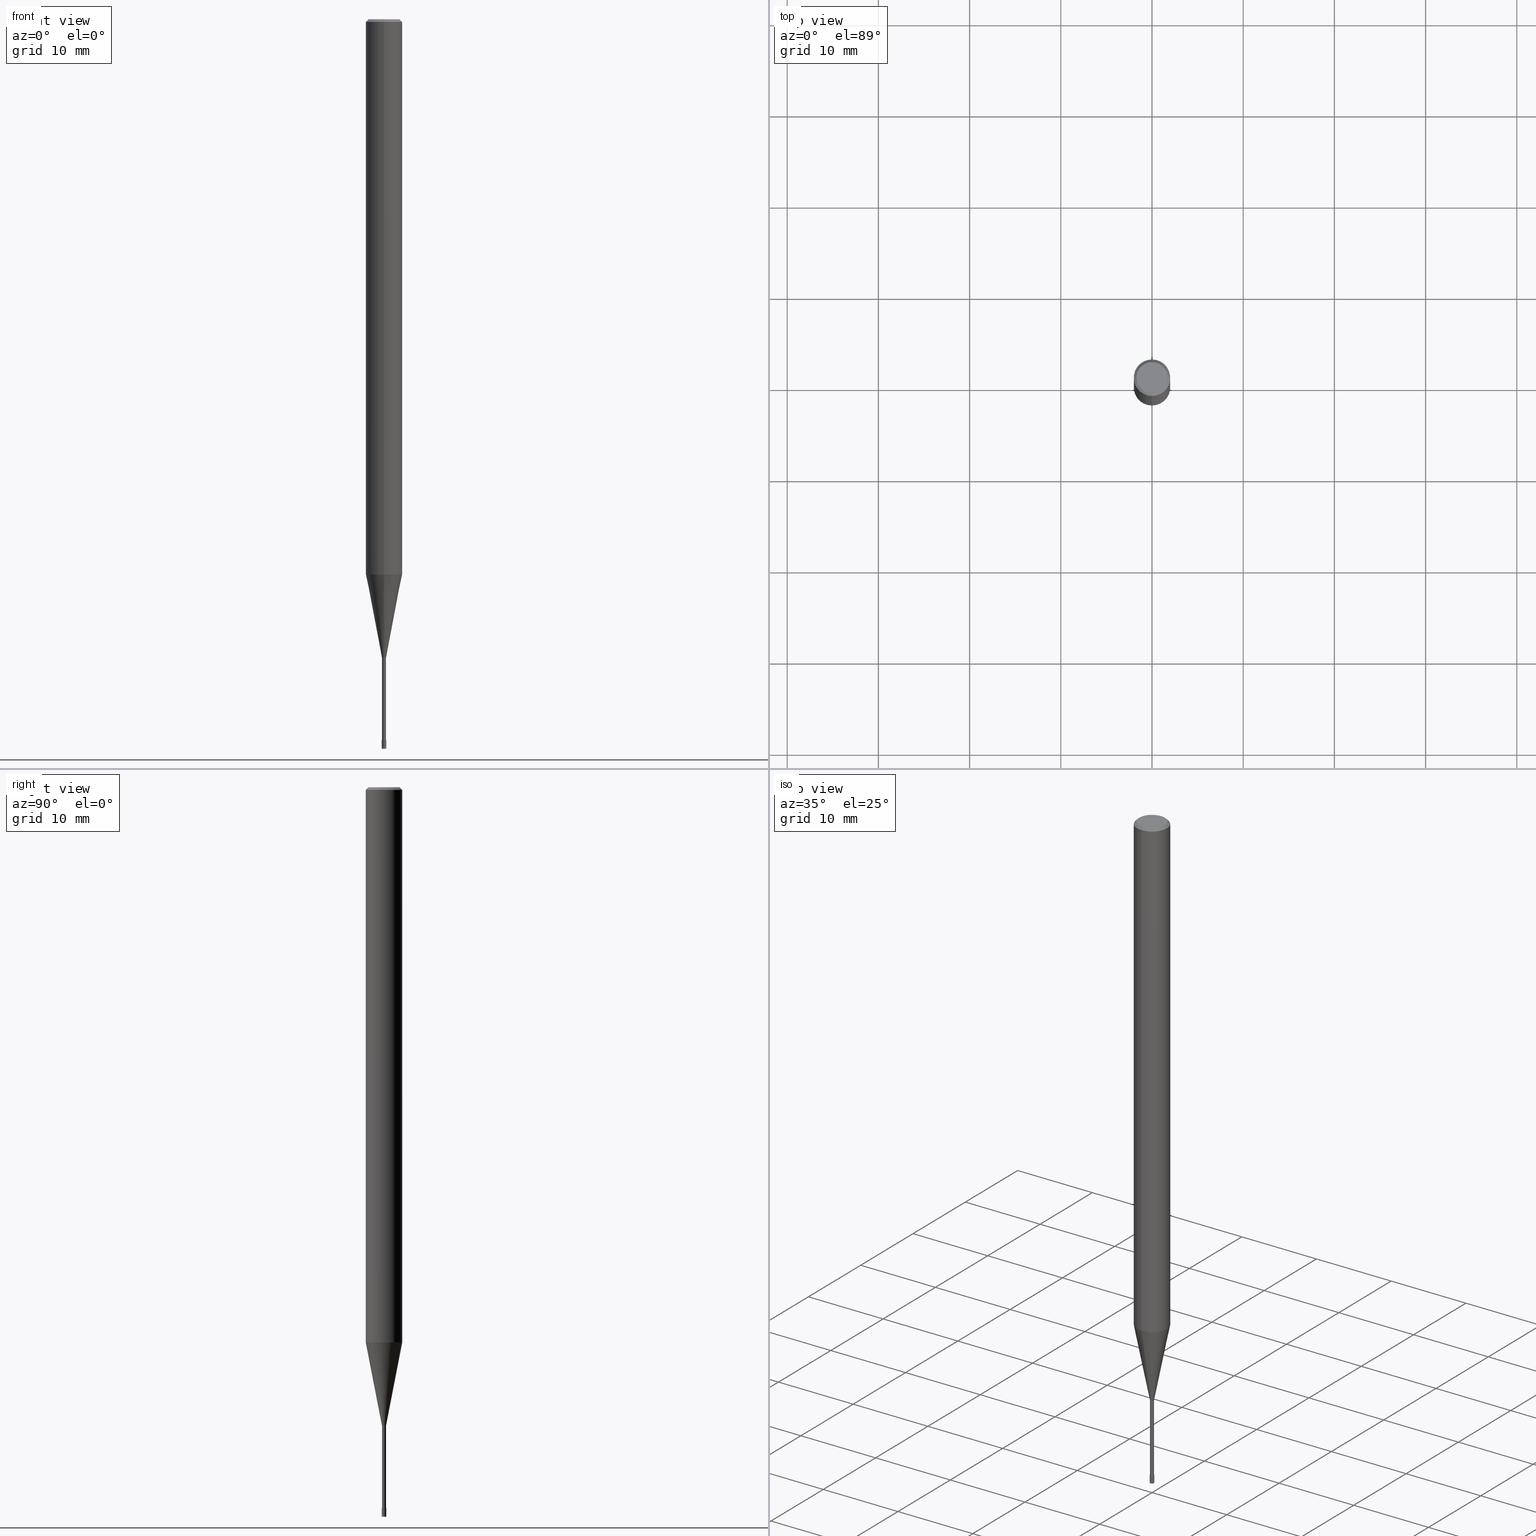
[diagram: canonical four-view strip — front | top / right | iso, engineering-drawing reading convention]
A machine part, canonical four-view strip (front | top / right | iso — engineering-drawing reading convention). The complete STEP part file that produces these views, byte-faithful:
ISO-10303-21;
HEADER;
FILE_DESCRIPTION(('no description'),'unknown implementation level');
FILE_NAME('CPRL2005-10-Huellk.stp','  ',('CIMSOURCE GmbH'),('CADClick - KiM GmbH - www.kimweb.de'),'unknown preprocess','ACIS','unknown authorization');
FILE_SCHEMA(('automotive_design'));
ENDSEC;
DATA;
#1=MECHANICAL_DESIGN_GEOMETRIC_PRESENTATION_REPRESENTATION(' ',(#14,#15,#16,#17,#18,#19,#20,#21,#22,#23,#24,#25,#26,#27,#28,#29,#30,#31,#32,#33,#34,#35,#36,#37,#38,#39,#40,#41,#42,#43,#44,#45,#46,#47,#48,#49,#50,#51,#52,#53,#54,#55,#56,#57,#58,#59,#60,#61,#62,#63,#64,#65,#66,#67,#68,#69,#70,#71,#72),#10);
#2=PRODUCT_DEFINITION_CONTEXT('',#73,'design');
#3=APPLICATION_PROTOCOL_DEFINITION('INTERNATIONAL STANDARD','automotive_design',1994,#73);
#4=PRODUCT_CATEGORY_RELATIONSHIP('NONE','NONE',#74,#75);
#5=SHAPE_DEFINITION_REPRESENTATION(#76,#77);
#6=PRODUCT_DEFINITION_CONTEXT('',#78,'design');
#7=APPLICATION_PROTOCOL_DEFINITION('INTERNATIONAL STANDARD','automotive_design',1994,#78);
#8=PRODUCT_CATEGORY_RELATIONSHIP('NONE','NONE',#79,#80);
#9=SHAPE_DEFINITION_REPRESENTATION(#81,#82);
#10= (GEOMETRIC_REPRESENTATION_CONTEXT(3)GLOBAL_UNCERTAINTY_ASSIGNED_CONTEXT((#85))GLOBAL_UNIT_ASSIGNED_CONTEXT((#87,#88,#89))REPRESENTATION_CONTEXT('NONE','WORKSPACE'));
#14=STYLED_ITEM('',(#91),#92);
#15=STYLED_ITEM('',(#93),#94);
#16=STYLED_ITEM('',(#95),#96);
#17=STYLED_ITEM('',(#97),#98);
#18=STYLED_ITEM('',(#99),#100);
#19=STYLED_ITEM('',(#101),#102);
#20=STYLED_ITEM('',(#103),#104);
#21=STYLED_ITEM('',(#105),#106);
#22=STYLED_ITEM('',(#107),#108);
#23=STYLED_ITEM('',(#109),#110);
#24=STYLED_ITEM('',(#111),#112);
#25=STYLED_ITEM('',(#113),#114);
#26=STYLED_ITEM('',(#115),#116);
#27=STYLED_ITEM('',(#117),#118);
#28=STYLED_ITEM('',(#119),#120);
#29=STYLED_ITEM('',(#121),#122);
#30=STYLED_ITEM('',(#123),#124);
#31=STYLED_ITEM('',(#125),#126);
#32=STYLED_ITEM('',(#127),#128);
#33=STYLED_ITEM('',(#129),#130);
#34=STYLED_ITEM('',(#131),#132);
#35=STYLED_ITEM('',(#133),#134);
#36=STYLED_ITEM('',(#135),#136);
#37=STYLED_ITEM('',(#137),#138);
#38=STYLED_ITEM('',(#139),#140);
#39=STYLED_ITEM('',(#141),#142);
#40=STYLED_ITEM('',(#143),#144);
#41=STYLED_ITEM('',(#145),#146);
#42=STYLED_ITEM('',(#147),#148);
#43=STYLED_ITEM('',(#149),#150);
#44=STYLED_ITEM('',(#151),#152);
#45=STYLED_ITEM('',(#153),#154);
#46=STYLED_ITEM('',(#155),#156);
#47=STYLED_ITEM('',(#157),#158);
#48=STYLED_ITEM('',(#159),#160);
#49=STYLED_ITEM('',(#161),#162);
#50=STYLED_ITEM('',(#163),#164);
#51=STYLED_ITEM('',(#165),#166);
#52=STYLED_ITEM('',(#167),#168);
#53=STYLED_ITEM('',(#169),#170);
#54=STYLED_ITEM('',(#171),#172);
#55=STYLED_ITEM('',(#173),#174);
#56=STYLED_ITEM('',(#175),#176);
#57=STYLED_ITEM('',(#177),#178);
#58=STYLED_ITEM('',(#179),#180);
#59=STYLED_ITEM('',(#181),#182);
#60=STYLED_ITEM('',(#183),#184);
#61=STYLED_ITEM('',(#185),#186);
#62=STYLED_ITEM('',(#187),#188);
#63=STYLED_ITEM('',(#189),#190);
#64=STYLED_ITEM('',(#191),#192);
#65=STYLED_ITEM('',(#193),#194);
#66=STYLED_ITEM('',(#195),#196);
#67=STYLED_ITEM('',(#197),#198);
#68=STYLED_ITEM('',(#199),#200);
#69=STYLED_ITEM('',(#201),#202);
#70=STYLED_ITEM('',(#203),#204);
#71=STYLED_ITEM('',(#205),#206);
#72=STYLED_ITEM('',(#207),#208);
#73=APPLICATION_CONTEXT(' ');
#74=PRODUCT_CATEGORY('part','NONE');
#75=PRODUCT_RELATED_PRODUCT_CATEGORY('detail',' ',(#209));
#76=PRODUCT_DEFINITION_SHAPE('NONE','NONE',#210);
#77=ADVANCED_BREP_SHAPE_REPRESENTATION('1',(#104,#211),#10);
#78=APPLICATION_CONTEXT(' ');
#79=PRODUCT_CATEGORY('part','NONE');
#80=PRODUCT_RELATED_PRODUCT_CATEGORY('detail',' ',(#212));
#81=PRODUCT_DEFINITION_SHAPE('NONE','NONE',#213);
#82=ADVANCED_BREP_SHAPE_REPRESENTATION('2',(#156,#214),#10);
#85=UNCERTAINTY_MEASURE_WITH_UNIT(LENGTH_MEASURE(1.0E-006),#87,'','');
#87= (CONVERSION_BASED_UNIT('MILLIMETRE',#217)LENGTH_UNIT()NAMED_UNIT(#220));
#88= (NAMED_UNIT(#222)PLANE_ANGLE_UNIT()SI_UNIT($,.RADIAN.));
#89= (NAMED_UNIT(#222)SOLID_ANGLE_UNIT()SI_UNIT($,.STERADIAN.));
#91=PRESENTATION_STYLE_ASSIGNMENT((#228));
#92=EDGE_CURVE('',#98,#190,#229,.T.);
#93=PRESENTATION_STYLE_ASSIGNMENT((#230));
#94=EDGE_CURVE('',#182,#180,#231,.T.);
#95=PRESENTATION_STYLE_ASSIGNMENT((#232));
#96=ADVANCED_FACE('',(#233),#234,.T.);
#97=PRESENTATION_STYLE_ASSIGNMENT((#235));
#98=VERTEX_POINT('',#236);
#99=PRESENTATION_STYLE_ASSIGNMENT((#237));
#100=ADVANCED_FACE('',(#238),#239,.T.);
#101=PRESENTATION_STYLE_ASSIGNMENT((#240));
#102=ADVANCED_FACE('',(#241),#242,.T.);
#103=PRESENTATION_STYLE_ASSIGNMENT((#243));
#104=MANIFOLD_SOLID_BREP('1',#244);
#105=PRESENTATION_STYLE_ASSIGNMENT((#245));
#106=EDGE_CURVE('',#168,#184,#246,.T.);
#107=PRESENTATION_STYLE_ASSIGNMENT((#247));
#108=VERTEX_POINT('',#248);
#109=PRESENTATION_STYLE_ASSIGNMENT((#249));
#110=ADVANCED_FACE('',(#250),#251,.T.);
#111=PRESENTATION_STYLE_ASSIGNMENT((#252));
#112=ADVANCED_FACE('',(#253),#254,.T.);
#113=PRESENTATION_STYLE_ASSIGNMENT((#255));
#114=EDGE_CURVE('',#198,#108,#256,.T.);
#115=PRESENTATION_STYLE_ASSIGNMENT((#257));
#116=EDGE_CURVE('',#190,#168,#258,.T.);
#117=PRESENTATION_STYLE_ASSIGNMENT((#259));
#118=ADVANCED_FACE('',(#260),#261,.T.);
#119=PRESENTATION_STYLE_ASSIGNMENT((#262));
#120=ADVANCED_FACE('',(#263),#264,.T.);
#121=PRESENTATION_STYLE_ASSIGNMENT((#265));
#122=VERTEX_POINT('',#266);
#123=PRESENTATION_STYLE_ASSIGNMENT((#267));
#124=EDGE_CURVE('',#182,#190,#268,.T.);
#125=PRESENTATION_STYLE_ASSIGNMENT((#269));
#126=VERTEX_POINT('',#270);
#127=PRESENTATION_STYLE_ASSIGNMENT((#271));
#128=ADVANCED_FACE('',(#272,#273),#274,.T.);
#129=PRESENTATION_STYLE_ASSIGNMENT((#275));
#130=EDGE_CURVE('',#122,#192,#276,.T.);
#131=PRESENTATION_STYLE_ASSIGNMENT((#277));
#132=EDGE_CURVE('',#206,#208,#278,.T.);
#133=PRESENTATION_STYLE_ASSIGNMENT((#279));
#134=EDGE_CURVE('',#126,#198,#280,.T.);
#135=PRESENTATION_STYLE_ASSIGNMENT((#281));
#136=EDGE_CURVE('',#170,#206,#282,.T.);
#137=PRESENTATION_STYLE_ASSIGNMENT((#283));
#138=EDGE_CURVE('',#192,#170,#284,.T.);
#139=PRESENTATION_STYLE_ASSIGNMENT((#285));
#140=EDGE_CURVE('',#170,#142,#286,.T.);
#141=PRESENTATION_STYLE_ASSIGNMENT((#287));
#142=VERTEX_POINT('',#288);
#143=PRESENTATION_STYLE_ASSIGNMENT((#289));
#144=VERTEX_POINT('',#290);
#145=PRESENTATION_STYLE_ASSIGNMENT((#291));
#146=EDGE_CURVE('',#208,#142,#292,.T.);
#147=PRESENTATION_STYLE_ASSIGNMENT((#293));
#148=EDGE_CURVE('',#142,#170,#294,.T.);
#149=PRESENTATION_STYLE_ASSIGNMENT((#295));
#150=EDGE_CURVE('',#108,#144,#296,.T.);
#151=PRESENTATION_STYLE_ASSIGNMENT((#297));
#152=EDGE_CURVE('',#190,#182,#298,.T.);
#153=PRESENTATION_STYLE_ASSIGNMENT((#299));
#154=EDGE_CURVE('',#198,#126,#300,.T.);
#155=PRESENTATION_STYLE_ASSIGNMENT((#301));
#156=MANIFOLD_SOLID_BREP('2',#302);
#157=PRESENTATION_STYLE_ASSIGNMENT((#303));
#158=ADVANCED_FACE('',(#304),#305,.T.);
#159=PRESENTATION_STYLE_ASSIGNMENT((#306));
#160=ADVANCED_FACE('',(#307),#308,.T.);
#161=PRESENTATION_STYLE_ASSIGNMENT((#309));
#162=ADVANCED_FACE('',(#310),#311,.T.);
#163=PRESENTATION_STYLE_ASSIGNMENT((#312));
#164=ADVANCED_FACE('',(#313),#314,.T.);
#165=PRESENTATION_STYLE_ASSIGNMENT((#315));
#166=EDGE_CURVE('',#142,#122,#316,.T.);
#167=PRESENTATION_STYLE_ASSIGNMENT((#317));
#168=VERTEX_POINT('',#318);
#169=PRESENTATION_STYLE_ASSIGNMENT((#319));
#170=VERTEX_POINT('',#320);
#171=PRESENTATION_STYLE_ASSIGNMENT((#321));
#172=EDGE_CURVE('',#144,#126,#322,.T.);
#173=PRESENTATION_STYLE_ASSIGNMENT((#323));
#174=EDGE_CURVE('',#192,#122,#324,.T.);
#175=PRESENTATION_STYLE_ASSIGNMENT((#325));
#176=EDGE_CURVE('',#208,#206,#326,.T.);
#177=PRESENTATION_STYLE_ASSIGNMENT((#327));
#178=EDGE_CURVE('',#180,#98,#328,.T.);
#179=PRESENTATION_STYLE_ASSIGNMENT((#329));
#180=VERTEX_POINT('',#330);
#181=PRESENTATION_STYLE_ASSIGNMENT((#331));
#182=VERTEX_POINT('',#332);
#183=PRESENTATION_STYLE_ASSIGNMENT((#333));
#184=VERTEX_POINT('',#334);
#185=PRESENTATION_STYLE_ASSIGNMENT((#335));
#186=ADVANCED_FACE('',(#336),#337,.T.);
#187=PRESENTATION_STYLE_ASSIGNMENT((#338));
#188=ADVANCED_FACE('',(#339),#340,.T.);
#189=PRESENTATION_STYLE_ASSIGNMENT((#341));
#190=VERTEX_POINT('',#342);
#191=PRESENTATION_STYLE_ASSIGNMENT((#343));
#192=VERTEX_POINT('',#344);
#193=PRESENTATION_STYLE_ASSIGNMENT((#345));
#194=EDGE_CURVE('',#98,#180,#346,.T.);
#195=PRESENTATION_STYLE_ASSIGNMENT((#347));
#196=EDGE_CURVE('',#144,#108,#348,.T.);
#197=PRESENTATION_STYLE_ASSIGNMENT((#349));
#198=VERTEX_POINT('',#350);
#199=PRESENTATION_STYLE_ASSIGNMENT((#351));
#200=ADVANCED_FACE('',(#352),#353,.T.);
#201=PRESENTATION_STYLE_ASSIGNMENT((#354));
#202=EDGE_CURVE('',#184,#168,#355,.T.);
#203=PRESENTATION_STYLE_ASSIGNMENT((#356));
#204=EDGE_CURVE('',#184,#182,#357,.T.);
#205=PRESENTATION_STYLE_ASSIGNMENT((#358));
#206=VERTEX_POINT('',#359);
#207=PRESENTATION_STYLE_ASSIGNMENT((#360));
#208=VERTEX_POINT('',#361);
#209=PRODUCT('1','1','PART-1-DESC',(#362));
#210=PRODUCT_DEFINITION('NONE','NONE',#363,#2);
#211=AXIS2_PLACEMENT_3D('',#364,#365,#366);
#212=PRODUCT('2','2','PART-2-DESC',(#367));
#213=PRODUCT_DEFINITION('NONE','NONE',#368,#6);
#214=AXIS2_PLACEMENT_3D('',#369,#370,#371);
#217=LENGTH_MEASURE_WITH_UNIT(LENGTH_MEASURE(1.0),#372);
#220=DIMENSIONAL_EXPONENTS(1.0,0.0,0.0,0.0,0.0,0.0,0.0);
#222=DIMENSIONAL_EXPONENTS(0.0,0.0,0.0,0.0,0.0,0.0,0.0);
#228=CURVE_STYLE('',#373,POSITIVE_LENGTH_MEASURE(1.0E-006),#374);
#229=LINE('',#375,#376);
#230=CURVE_STYLE('',#377,POSITIVE_LENGTH_MEASURE(1.0E-006),#378);
#231=LINE('',#379,#380);
#232=SURFACE_STYLE_USAGE(.BOTH.,#381);
#233=FACE_OUTER_BOUND('',#382,.T.);
#234=CYLINDRICAL_SURFACE('',#383,0.22495);
#235=POINT_STYLE(' ',#384,POSITIVE_LENGTH_MEASURE(1.0E-006),#385);
#236=CARTESIAN_POINT('',(2.75475199292344E-017,-0.22495,-79.0));
#237=SURFACE_STYLE_USAGE(.BOTH.,#386);
#238=FACE_OUTER_BOUND('',#387,.T.);
#239=PLANE('',#388);
#240=SURFACE_STYLE_USAGE(.BOTH.,#389);
#241=FACE_OUTER_BOUND('',#390,.T.);
#242=CONICAL_SURFACE('',#391,0.24995,9.99999996666557E-005);
#243=SURFACE_STYLE_USAGE(.BOTH.,#392);
#244=CLOSED_SHELL('',(#118,#158,#188,#120,#128,#100,#200,#160,#186,#96,#110));
#245=CURVE_STYLE('',#393,POSITIVE_LENGTH_MEASURE(1.0E-006),#394);
#246=CIRCLE('',#395,1.99995);
#247=POINT_STYLE(' ',#396,POSITIVE_LENGTH_MEASURE(1.0E-006),#397);
#248=CARTESIAN_POINT('',(0.0,0.25,-80.0));
#249=SURFACE_STYLE_USAGE(.BOTH.,#398);
#250=FACE_OUTER_BOUND('',#399,.T.);
#251=PLANE('',#400);
#252=SURFACE_STYLE_USAGE(.BOTH.,#401);
#253=FACE_OUTER_BOUND('',#402,.T.);
#254=PLANE('',#403);
#255=CURVE_STYLE('',#404,POSITIVE_LENGTH_MEASURE(1.0E-006),#405);
#256=LINE('',#406,#407);
#257=CURVE_STYLE('',#408,POSITIVE_LENGTH_MEASURE(1.0E-006),#409);
#258=LINE('',#410,#411);
#259=SURFACE_STYLE_USAGE(.BOTH.,#412);
#260=FACE_OUTER_BOUND('',#413,.T.);
#261=CYLINDRICAL_SURFACE('',#414,0.22495);
#262=SURFACE_STYLE_USAGE(.BOTH.,#415);
#263=FACE_OUTER_BOUND('',#416,.T.);
#264=CONICAL_SURFACE('',#417,1.85,0.785398163397453);
#265=POINT_STYLE(' ',#418,POSITIVE_LENGTH_MEASURE(1.0E-006),#419);
#266=CARTESIAN_POINT('',(0.0,2.0,-60.868));
#267=CURVE_STYLE('',#420,POSITIVE_LENGTH_MEASURE(1.0E-006),#421);
#268=CIRCLE('',#422,0.22495);
#269=POINT_STYLE(' ',#423,POSITIVE_LENGTH_MEASURE(1.0E-006),#424);
#270=CARTESIAN_POINT('',(3.06029127820212E-017,-0.2499,-79.0));
#271=SURFACE_STYLE_USAGE(.BOTH.,#425);
#272=FACE_OUTER_BOUND('',#426,.T.);
#273=FACE_BOUND('',#427,.T.);
#274=PLANE('',#428);
#275=CURVE_STYLE('',#429,POSITIVE_LENGTH_MEASURE(1.0E-006),#430);
#276=CIRCLE('',#431,2.0);
#277=CURVE_STYLE('',#432,POSITIVE_LENGTH_MEASURE(1.0E-006),#433);
#278=CIRCLE('',#434,1.7);
#279=CURVE_STYLE('',#435,POSITIVE_LENGTH_MEASURE(1.0E-006),#436);
#280=CIRCLE('',#437,0.2499);
#281=CURVE_STYLE('',#438,POSITIVE_LENGTH_MEASURE(1.0E-006),#439);
#282=LINE('',#440,#441);
#283=CURVE_STYLE('',#442,POSITIVE_LENGTH_MEASURE(1.0E-006),#443);
#284=LINE('',#444,#445);
#285=CURVE_STYLE('',#446,POSITIVE_LENGTH_MEASURE(1.0E-006),#447);
#286=CIRCLE('',#448,2.0);
#287=POINT_STYLE(' ',#449,POSITIVE_LENGTH_MEASURE(1.0E-006),#450);
#288=CARTESIAN_POINT('',(0.0,2.0,-0.299999999999997));
#289=POINT_STYLE(' ',#451,POSITIVE_LENGTH_MEASURE(1.0E-006),#452);
#290=CARTESIAN_POINT('',(3.06151588455594E-017,-0.25,-80.0));
#291=CURVE_STYLE('',#453,POSITIVE_LENGTH_MEASURE(1.0E-006),#454);
#292=LINE('',#455,#456);
#293=CURVE_STYLE('',#457,POSITIVE_LENGTH_MEASURE(1.0E-006),#458);
#294=CIRCLE('',#459,2.0);
#295=CURVE_STYLE('',#460,POSITIVE_LENGTH_MEASURE(1.0E-006),#461);
#296=CIRCLE('',#462,0.25);
#297=CURVE_STYLE('',#463,POSITIVE_LENGTH_MEASURE(1.0E-006),#464);
#298=CIRCLE('',#465,0.22495);
#299=CURVE_STYLE('',#466,POSITIVE_LENGTH_MEASURE(1.0E-006),#467);
#300=CIRCLE('',#468,0.2499);
#301=SURFACE_STYLE_USAGE(.BOTH.,#469);
#302=CLOSED_SHELL('',(#102,#164,#162,#112));
#303=SURFACE_STYLE_USAGE(.BOTH.,#470);
#304=FACE_OUTER_BOUND('',#471,.T.);
#305=CONICAL_SURFACE('',#472,1.11245,0.191977672522415);
#306=SURFACE_STYLE_USAGE(.BOTH.,#473);
#307=FACE_OUTER_BOUND('',#474,.T.);
#308=CYLINDRICAL_SURFACE('',#475,2.0);
#309=SURFACE_STYLE_USAGE(.BOTH.,#476);
#310=FACE_OUTER_BOUND('',#477,.T.);
#311=CONICAL_SURFACE('',#478,0.24995,9.99999996666557E-005);
#312=SURFACE_STYLE_USAGE(.BOTH.,#479);
#313=FACE_OUTER_BOUND('',#480,.T.);
#314=PLANE('',#481);
#315=CURVE_STYLE('',#482,POSITIVE_LENGTH_MEASURE(1.0E-006),#483);
#316=LINE('',#484,#485);
#317=POINT_STYLE(' ',#486,POSITIVE_LENGTH_MEASURE(1.0E-006),#487);
#318=CARTESIAN_POINT('',(2.44915147732706E-016,-1.99995,-60.868));
#319=POINT_STYLE(' ',#488,POSITIVE_LENGTH_MEASURE(1.0E-006),#489);
#320=CARTESIAN_POINT('',(2.44921270764475E-016,-2.0,-0.299999999999997));
#321=CURVE_STYLE('',#490,POSITIVE_LENGTH_MEASURE(1.0E-006),#491);
#322=LINE('',#492,#493);
#323=CURVE_STYLE('',#494,POSITIVE_LENGTH_MEASURE(1.0E-006),#495);
#324=CIRCLE('',#496,2.0);
#325=CURVE_STYLE('',#497,POSITIVE_LENGTH_MEASURE(1.0E-006),#498);
#326=CIRCLE('',#499,1.7);
#327=CURVE_STYLE('',#500,POSITIVE_LENGTH_MEASURE(1.0E-006),#501);
#328=CIRCLE('',#502,0.22495);
#329=POINT_STYLE(' ',#503,POSITIVE_LENGTH_MEASURE(1.0E-006),#504);
#330=CARTESIAN_POINT('',(0.0,0.22495,-79.0));
#331=POINT_STYLE(' ',#505,POSITIVE_LENGTH_MEASURE(1.0E-006),#506);
#332=CARTESIAN_POINT('',(0.0,0.22495,-70.0));
#333=POINT_STYLE(' ',#507,POSITIVE_LENGTH_MEASURE(1.0E-006),#508);
#334=CARTESIAN_POINT('',(0.0,1.99995,-60.868));
#335=SURFACE_STYLE_USAGE(.BOTH.,#509);
#336=FACE_OUTER_BOUND('',#510,.T.);
#337=CONICAL_SURFACE('',#511,1.11245,0.191977672522415);
#338=SURFACE_STYLE_USAGE(.BOTH.,#512);
#339=FACE_OUTER_BOUND('',#513,.T.);
#340=CYLINDRICAL_SURFACE('',#514,2.0);
#341=POINT_STYLE(' ',#515,POSITIVE_LENGTH_MEASURE(1.0E-006),#516);
#342=CARTESIAN_POINT('',(2.75475199292344E-017,-0.22495,-70.0));
#343=POINT_STYLE(' ',#517,POSITIVE_LENGTH_MEASURE(1.0E-006),#518);
#344=CARTESIAN_POINT('',(2.44921270764475E-016,-2.0,-60.868));
#345=CURVE_STYLE('',#519,POSITIVE_LENGTH_MEASURE(1.0E-006),#520);
#346=CIRCLE('',#521,0.22495);
#347=CURVE_STYLE('',#522,POSITIVE_LENGTH_MEASURE(1.0E-006),#523);
#348=CIRCLE('',#524,0.25);
#349=POINT_STYLE(' ',#525,POSITIVE_LENGTH_MEASURE(1.0E-006),#526);
#350=CARTESIAN_POINT('',(0.0,0.2499,-79.0));
#351=SURFACE_STYLE_USAGE(.BOTH.,#527);
#352=FACE_OUTER_BOUND('',#528,.T.);
#353=CONICAL_SURFACE('',#529,1.85,0.785398163397453);
#354=CURVE_STYLE('',#530,POSITIVE_LENGTH_MEASURE(1.0E-006),#531);
#355=CIRCLE('',#532,1.99995);
#356=CURVE_STYLE('',#533,POSITIVE_LENGTH_MEASURE(1.0E-006),#534);
#357=LINE('',#535,#536);
#358=POINT_STYLE(' ',#537,POSITIVE_LENGTH_MEASURE(1.0E-006),#538);
#359=CARTESIAN_POINT('',(2.08183080149804E-016,-1.7,0.0));
#360=POINT_STYLE(' ',#539,POSITIVE_LENGTH_MEASURE(1.0E-006),#540);
#361=CARTESIAN_POINT('',(0.0,1.7,0.0));
#362=PRODUCT_CONTEXT('',#73,'mechanical');
#363=PRODUCT_DEFINITION_FORMATION_WITH_SPECIFIED_SOURCE(' ','NONE',#209,.NOT_KNOWN.);
#364=CARTESIAN_POINT('',(0.0,0.0,0.0));
#365=DIRECTION('',(0.0,0.0,1.0));
#366=DIRECTION('',(1.0,0.0,0.0));
#367=PRODUCT_CONTEXT('',#78,'mechanical');
#368=PRODUCT_DEFINITION_FORMATION_WITH_SPECIFIED_SOURCE(' ','NONE',#212,.NOT_KNOWN.);
#369=CARTESIAN_POINT('',(0.0,0.0,0.0));
#370=DIRECTION('',(0.0,0.0,1.0));
#371=DIRECTION('',(1.0,0.0,0.0));
#372= (NAMED_UNIT(#220)LENGTH_UNIT()SI_UNIT(.MILLI.,.METRE.));
#373=DRAUGHTING_PRE_DEFINED_CURVE_FONT('continuous');
#374=COLOUR_RGB('',0.498039215803146,0.498039215803146,0.498039215803146);
#375=CARTESIAN_POINT('',(2.75475199292344E-017,-0.22495,-74.5));
#376=VECTOR('',#542,1.0);
#377=DRAUGHTING_PRE_DEFINED_CURVE_FONT('continuous');
#378=COLOUR_RGB('',0.498039215803146,0.498039215803146,0.498039215803146);
#379=CARTESIAN_POINT('',(-2.75475199292344E-017,0.22495,-74.5));
#380=VECTOR('',#543,1.0);
#381=SURFACE_SIDE_STYLE('',(#544));
#382=EDGE_LOOP('',(#545,#546,#547,#548));
#383=AXIS2_PLACEMENT_3D('',#549,#550,#551);
#384=PRE_DEFINED_MARKER('');
#385=COLOUR_RGB('',0.498039215803146,0.498039215803146,0.498039215803146);
#386=SURFACE_SIDE_STYLE('',(#552));
#387=EDGE_LOOP('',(#553,#554));
#388=AXIS2_PLACEMENT_3D('',#555,#556,#557);
#389=SURFACE_SIDE_STYLE('',(#558));
#390=EDGE_LOOP('',(#559,#560,#561,#562));
#391=AXIS2_PLACEMENT_3D('',#563,#564,#565);
#392=SURFACE_SIDE_STYLE('',(#566));
#393=DRAUGHTING_PRE_DEFINED_CURVE_FONT('continuous');
#394=COLOUR_RGB('',0.498039215803146,0.498039215803146,0.498039215803146);
#395=AXIS2_PLACEMENT_3D('',#567,#568,#569);
#396=PRE_DEFINED_MARKER('');
#397=COLOUR_RGB('',0.800000011920929,0.800000011920929,0.800000011920929);
#398=SURFACE_SIDE_STYLE('',(#570));
#399=EDGE_LOOP('',(#571,#572));
#400=AXIS2_PLACEMENT_3D('',#573,#574,#575);
#401=SURFACE_SIDE_STYLE('',(#576));
#402=EDGE_LOOP('',(#577,#578));
#403=AXIS2_PLACEMENT_3D('',#579,#580,#581);
#404=DRAUGHTING_PRE_DEFINED_CURVE_FONT('continuous');
#405=COLOUR_RGB('',0.800000011920929,0.800000011920929,0.800000011920929);
#406=CARTESIAN_POINT('',(-3.06090358137903E-017,0.24995,-79.5));
#407=VECTOR('',#582,1.0);
#408=DRAUGHTING_PRE_DEFINED_CURVE_FONT('continuous');
#409=COLOUR_RGB('',0.498039215803146,0.498039215803146,0.498039215803146);
#410=CARTESIAN_POINT('',(1.3623133383097E-016,-1.11245,-65.434));
#411=VECTOR('',#583,1.0);
#412=SURFACE_SIDE_STYLE('',(#584));
#413=EDGE_LOOP('',(#585,#586,#587,#588));
#414=AXIS2_PLACEMENT_3D('',#589,#590,#591);
#415=SURFACE_SIDE_STYLE('',(#592));
#416=EDGE_LOOP('',(#593,#594,#595,#596));
#417=AXIS2_PLACEMENT_3D('',#597,#598,#599);
#418=PRE_DEFINED_MARKER('');
#419=COLOUR_RGB('',0.498039215803146,0.498039215803146,0.498039215803146);
#420=DRAUGHTING_PRE_DEFINED_CURVE_FONT('continuous');
#421=COLOUR_RGB('',0.498039215803146,0.498039215803146,0.498039215803146);
#422=AXIS2_PLACEMENT_3D('',#600,#601,#602);
#423=PRE_DEFINED_MARKER('');
#424=COLOUR_RGB('',0.800000011920929,0.800000011920929,0.800000011920929);
#425=SURFACE_SIDE_STYLE('',(#603));
#426=EDGE_LOOP('',(#604,#605));
#427=EDGE_LOOP('',(#606,#607));
#428=AXIS2_PLACEMENT_3D('',#608,#609,#610);
#429=DRAUGHTING_PRE_DEFINED_CURVE_FONT('continuous');
#430=COLOUR_RGB('',0.498039215803146,0.498039215803146,0.498039215803146);
#431=AXIS2_PLACEMENT_3D('',#611,#612,#613);
#432=DRAUGHTING_PRE_DEFINED_CURVE_FONT('continuous');
#433=COLOUR_RGB('',0.498039215803146,0.498039215803146,0.498039215803146);
#434=AXIS2_PLACEMENT_3D('',#614,#615,#616);
#435=DRAUGHTING_PRE_DEFINED_CURVE_FONT('continuous');
#436=COLOUR_RGB('',0.800000011920929,0.800000011920929,0.800000011920929);
#437=AXIS2_PLACEMENT_3D('',#617,#618,#619);
#438=DRAUGHTING_PRE_DEFINED_CURVE_FONT('continuous');
#439=COLOUR_RGB('',0.498039215803146,0.498039215803146,0.498039215803146);
#440=CARTESIAN_POINT('',(2.2655217545714E-016,-1.85,-0.149999999999999));
#441=VECTOR('',#620,1.0);
#442=DRAUGHTING_PRE_DEFINED_CURVE_FONT('continuous');
#443=COLOUR_RGB('',0.498039215803146,0.498039215803146,0.498039215803146);
#444=CARTESIAN_POINT('',(2.44921270764475E-016,-2.0,-30.584));
#445=VECTOR('',#621,1.0);
#446=DRAUGHTING_PRE_DEFINED_CURVE_FONT('continuous');
#447=COLOUR_RGB('',0.498039215803146,0.498039215803146,0.498039215803146);
#448=AXIS2_PLACEMENT_3D('',#622,#623,#624);
#449=PRE_DEFINED_MARKER('');
#450=COLOUR_RGB('',0.498039215803146,0.498039215803146,0.498039215803146);
#451=PRE_DEFINED_MARKER('');
#452=COLOUR_RGB('',0.800000011920929,0.800000011920929,0.800000011920929);
#453=DRAUGHTING_PRE_DEFINED_CURVE_FONT('continuous');
#454=COLOUR_RGB('',0.498039215803146,0.498039215803146,0.498039215803146);
#455=CARTESIAN_POINT('',(-2.2655217545714E-016,1.85,-0.149999999999999));
#456=VECTOR('',#625,1.0);
#457=DRAUGHTING_PRE_DEFINED_CURVE_FONT('continuous');
#458=COLOUR_RGB('',0.498039215803146,0.498039215803146,0.498039215803146);
#459=AXIS2_PLACEMENT_3D('',#626,#627,#628);
#460=DRAUGHTING_PRE_DEFINED_CURVE_FONT('continuous');
#461=COLOUR_RGB('',0.800000011920929,0.800000011920929,0.800000011920929);
#462=AXIS2_PLACEMENT_3D('',#629,#630,#631);
#463=DRAUGHTING_PRE_DEFINED_CURVE_FONT('continuous');
#464=COLOUR_RGB('',0.498039215803146,0.498039215803146,0.498039215803146);
#465=AXIS2_PLACEMENT_3D('',#632,#633,#634);
#466=DRAUGHTING_PRE_DEFINED_CURVE_FONT('continuous');
#467=COLOUR_RGB('',0.800000011920929,0.800000011920929,0.800000011920929);
#468=AXIS2_PLACEMENT_3D('',#635,#636,#637);
#469=SURFACE_SIDE_STYLE('',(#638));
#470=SURFACE_SIDE_STYLE('',(#639));
#471=EDGE_LOOP('',(#640,#641,#642,#643));
#472=AXIS2_PLACEMENT_3D('',#644,#645,#646);
#473=SURFACE_SIDE_STYLE('',(#647));
#474=EDGE_LOOP('',(#648,#649,#650,#651));
#475=AXIS2_PLACEMENT_3D('',#652,#653,#654);
#476=SURFACE_SIDE_STYLE('',(#655));
#477=EDGE_LOOP('',(#656,#657,#658,#659));
#478=AXIS2_PLACEMENT_3D('',#660,#661,#662);
#479=SURFACE_SIDE_STYLE('',(#663));
#480=EDGE_LOOP('',(#664,#665));
#481=AXIS2_PLACEMENT_3D('',#666,#667,#668);
#482=DRAUGHTING_PRE_DEFINED_CURVE_FONT('continuous');
#483=COLOUR_RGB('',0.498039215803146,0.498039215803146,0.498039215803146);
#484=CARTESIAN_POINT('',(-2.44921270764475E-016,2.0,-30.584));
#485=VECTOR('',#669,1.0);
#486=PRE_DEFINED_MARKER('');
#487=COLOUR_RGB('',0.498039215803146,0.498039215803146,0.498039215803146);
#488=PRE_DEFINED_MARKER('');
#489=COLOUR_RGB('',0.498039215803146,0.498039215803146,0.498039215803146);
#490=DRAUGHTING_PRE_DEFINED_CURVE_FONT('continuous');
#491=COLOUR_RGB('',0.800000011920929,0.800000011920929,0.800000011920929);
#492=CARTESIAN_POINT('',(3.06090358137903E-017,-0.24995,-79.5));
#493=VECTOR('',#670,1.0);
#494=DRAUGHTING_PRE_DEFINED_CURVE_FONT('continuous');
#495=COLOUR_RGB('',0.498039215803146,0.498039215803146,0.498039215803146);
#496=AXIS2_PLACEMENT_3D('',#671,#672,#673);
#497=DRAUGHTING_PRE_DEFINED_CURVE_FONT('continuous');
#498=COLOUR_RGB('',0.498039215803146,0.498039215803146,0.498039215803146);
#499=AXIS2_PLACEMENT_3D('',#674,#675,#676);
#500=DRAUGHTING_PRE_DEFINED_CURVE_FONT('continuous');
#501=COLOUR_RGB('',0.498039215803146,0.498039215803146,0.498039215803146);
#502=AXIS2_PLACEMENT_3D('',#677,#678,#679);
#503=PRE_DEFINED_MARKER('');
#504=COLOUR_RGB('',0.498039215803146,0.498039215803146,0.498039215803146);
#505=PRE_DEFINED_MARKER('');
#506=COLOUR_RGB('',0.498039215803146,0.498039215803146,0.498039215803146);
#507=PRE_DEFINED_MARKER('');
#508=COLOUR_RGB('',0.498039215803146,0.498039215803146,0.498039215803146);
#509=SURFACE_SIDE_STYLE('',(#680));
#510=EDGE_LOOP('',(#681,#682,#683,#684));
#511=AXIS2_PLACEMENT_3D('',#685,#686,#687);
#512=SURFACE_SIDE_STYLE('',(#688));
#513=EDGE_LOOP('',(#689,#690,#691,#692));
#514=AXIS2_PLACEMENT_3D('',#693,#694,#695);
#515=PRE_DEFINED_MARKER('');
#516=COLOUR_RGB('',0.498039215803146,0.498039215803146,0.498039215803146);
#517=PRE_DEFINED_MARKER('');
#518=COLOUR_RGB('',0.498039215803146,0.498039215803146,0.498039215803146);
#519=DRAUGHTING_PRE_DEFINED_CURVE_FONT('continuous');
#520=COLOUR_RGB('',0.498039215803146,0.498039215803146,0.498039215803146);
#521=AXIS2_PLACEMENT_3D('',#696,#697,#698);
#522=DRAUGHTING_PRE_DEFINED_CURVE_FONT('continuous');
#523=COLOUR_RGB('',0.800000011920929,0.800000011920929,0.800000011920929);
#524=AXIS2_PLACEMENT_3D('',#699,#700,#701);
#525=PRE_DEFINED_MARKER('');
#526=COLOUR_RGB('',0.800000011920929,0.800000011920929,0.800000011920929);
#527=SURFACE_SIDE_STYLE('',(#702));
#528=EDGE_LOOP('',(#703,#704,#705,#706));
#529=AXIS2_PLACEMENT_3D('',#707,#708,#709);
#530=DRAUGHTING_PRE_DEFINED_CURVE_FONT('continuous');
#531=COLOUR_RGB('',0.498039215803146,0.498039215803146,0.498039215803146);
#532=AXIS2_PLACEMENT_3D('',#710,#711,#712);
#533=DRAUGHTING_PRE_DEFINED_CURVE_FONT('continuous');
#534=COLOUR_RGB('',0.498039215803146,0.498039215803146,0.498039215803146);
#535=CARTESIAN_POINT('',(-1.3623133383097E-016,1.11245,-65.434));
#536=VECTOR('',#713,1.0);
#537=PRE_DEFINED_MARKER('');
#538=COLOUR_RGB('',0.498039215803146,0.498039215803146,0.498039215803146);
#539=PRE_DEFINED_MARKER('');
#540=COLOUR_RGB('',0.498039215803146,0.498039215803146,0.498039215803146);
#542=DIRECTION('',(-0.0,-0.0,1.0));
#543=DIRECTION('',(0.0,0.0,-1.0));
#544=SURFACE_STYLE_FILL_AREA(#714);
#545=ORIENTED_EDGE('',*,*,#94,.T.);
#546=ORIENTED_EDGE('',*,*,#194,.F.);
#547=ORIENTED_EDGE('',*,*,#92,.T.);
#548=ORIENTED_EDGE('',*,*,#152,.T.);
#549=CARTESIAN_POINT('',(0.0,0.0,-74.5));
#550=DIRECTION('',(-0.0,-0.0,1.0));
#551=DIRECTION('',(0.0,1.0,0.0));
#552=SURFACE_STYLE_FILL_AREA(#715);
#553=ORIENTED_EDGE('',*,*,#176,.F.);
#554=ORIENTED_EDGE('',*,*,#132,.F.);
#555=CARTESIAN_POINT('',(0.0,0.85,0.0));
#556=DIRECTION('',(-0.0,0.0,1.0));
#557=DIRECTION('',(0.0,-1.0,0.0));
#558=SURFACE_STYLE_FILL_AREA(#716);
#559=ORIENTED_EDGE('',*,*,#114,.F.);
#560=ORIENTED_EDGE('',*,*,#154,.T.);
#561=ORIENTED_EDGE('',*,*,#172,.F.);
#562=ORIENTED_EDGE('',*,*,#150,.F.);
#563=CARTESIAN_POINT('',(0.0,0.0,-79.5));
#564=DIRECTION('',(0.0,-0.0,-1.0));
#565=DIRECTION('',(0.0,1.0,0.0));
#566=SURFACE_STYLE_FILL_AREA(#717);
#567=CARTESIAN_POINT('',(0.0,0.0,-60.868));
#568=DIRECTION('',(0.0,0.0,-1.0));
#569=DIRECTION('',(0.0,1.0,0.0));
#570=SURFACE_STYLE_FILL_AREA(#718);
#571=ORIENTED_EDGE('',*,*,#178,.T.);
#572=ORIENTED_EDGE('',*,*,#194,.T.);
#573=CARTESIAN_POINT('',(0.0,0.112475,-79.0));
#574=DIRECTION('',(0.0,0.0,-1.0));
#575=DIRECTION('',(0.0,1.0,0.0));
#576=SURFACE_STYLE_FILL_AREA(#719);
#577=ORIENTED_EDGE('',*,*,#150,.T.);
#578=ORIENTED_EDGE('',*,*,#196,.T.);
#579=CARTESIAN_POINT('',(0.0,0.1225,-80.0));
#580=DIRECTION('',(0.0,0.0,-1.0));
#581=DIRECTION('',(0.0,1.0,0.0));
#582=DIRECTION('',(-1.22460634769921E-020,9.9999999499989E-005,-0.999999995));
#583=DIRECTION('',(2.33655635855942E-017,-0.190800607171954,0.981628813912272));
#584=SURFACE_STYLE_FILL_AREA(#720);
#585=ORIENTED_EDGE('',*,*,#94,.F.);
#586=ORIENTED_EDGE('',*,*,#124,.T.);
#587=ORIENTED_EDGE('',*,*,#92,.F.);
#588=ORIENTED_EDGE('',*,*,#178,.F.);
#589=CARTESIAN_POINT('',(0.0,0.0,-74.5));
#590=DIRECTION('',(-0.0,-0.0,1.0));
#591=DIRECTION('',(0.0,1.0,0.0));
#592=SURFACE_STYLE_FILL_AREA(#721);
#593=ORIENTED_EDGE('',*,*,#146,.F.);
#594=ORIENTED_EDGE('',*,*,#176,.T.);
#595=ORIENTED_EDGE('',*,*,#136,.F.);
#596=ORIENTED_EDGE('',*,*,#148,.F.);
#597=CARTESIAN_POINT('',(0.0,0.0,-0.149999999999999));
#598=DIRECTION('',(0.0,-0.0,-1.0));
#599=DIRECTION('',(0.0,1.0,0.0));
#600=CARTESIAN_POINT('',(0.0,0.0,-70.0));
#601=DIRECTION('',(0.0,0.0,-1.0));
#602=DIRECTION('',(0.0,1.0,0.0));
#603=SURFACE_STYLE_FILL_AREA(#722);
#604=ORIENTED_EDGE('',*,*,#130,.T.);
#605=ORIENTED_EDGE('',*,*,#174,.T.);
#606=ORIENTED_EDGE('',*,*,#202,.F.);
#607=ORIENTED_EDGE('',*,*,#106,.F.);
#608=CARTESIAN_POINT('',(0.0,1.0,-60.868));
#609=DIRECTION('',(0.0,0.0,-1.0));
#610=DIRECTION('',(0.0,1.0,0.0));
#611=CARTESIAN_POINT('',(0.0,0.0,-60.868));
#612=DIRECTION('',(0.0,0.0,-1.0));
#613=DIRECTION('',(0.0,1.0,0.0));
#614=CARTESIAN_POINT('',(0.0,0.0,0.0));
#615=DIRECTION('',(0.0,0.0,-1.0));
#616=DIRECTION('',(0.0,1.0,0.0));
#617=CARTESIAN_POINT('',(0.0,0.0,-79.0));
#618=DIRECTION('',(0.0,0.0,-1.0));
#619=DIRECTION('',(0.0,1.0,0.0));
#620=DIRECTION('',(-8.6592745707194E-017,0.707106781186551,0.707106781186544));
#621=DIRECTION('',(-0.0,-0.0,1.0));
#622=CARTESIAN_POINT('',(0.0,0.0,-0.299999999999997));
#623=DIRECTION('',(0.0,0.0,-1.0));
#624=DIRECTION('',(0.0,1.0,0.0));
#625=DIRECTION('',(-8.6592745707194E-017,0.707106781186551,-0.707106781186544));
#626=CARTESIAN_POINT('',(0.0,0.0,-0.299999999999997));
#627=DIRECTION('',(0.0,0.0,-1.0));
#628=DIRECTION('',(0.0,1.0,0.0));
#629=CARTESIAN_POINT('',(0.0,0.0,-80.0));
#630=DIRECTION('',(0.0,0.0,-1.0));
#631=DIRECTION('',(0.0,1.0,0.0));
#632=CARTESIAN_POINT('',(0.0,0.0,-70.0));
#633=DIRECTION('',(0.0,0.0,-1.0));
#634=DIRECTION('',(0.0,1.0,0.0));
#635=CARTESIAN_POINT('',(0.0,0.0,-79.0));
#636=DIRECTION('',(0.0,0.0,-1.0));
#637=DIRECTION('',(0.0,1.0,0.0));
#638=SURFACE_STYLE_FILL_AREA(#723);
#639=SURFACE_STYLE_FILL_AREA(#724);
#640=ORIENTED_EDGE('',*,*,#204,.F.);
#641=ORIENTED_EDGE('',*,*,#202,.T.);
#642=ORIENTED_EDGE('',*,*,#116,.F.);
#643=ORIENTED_EDGE('',*,*,#124,.F.);
#644=CARTESIAN_POINT('',(0.0,0.0,-65.434));
#645=DIRECTION('',(-0.0,-0.0,1.0));
#646=DIRECTION('',(0.0,1.0,0.0));
#647=SURFACE_STYLE_FILL_AREA(#725);
#648=ORIENTED_EDGE('',*,*,#166,.T.);
#649=ORIENTED_EDGE('',*,*,#174,.F.);
#650=ORIENTED_EDGE('',*,*,#138,.T.);
#651=ORIENTED_EDGE('',*,*,#140,.T.);
#652=CARTESIAN_POINT('',(0.0,0.0,-30.584));
#653=DIRECTION('',(-0.0,-0.0,1.0));
#654=DIRECTION('',(0.0,1.0,0.0));
#655=SURFACE_STYLE_FILL_AREA(#726);
#656=ORIENTED_EDGE('',*,*,#114,.T.);
#657=ORIENTED_EDGE('',*,*,#196,.F.);
#658=ORIENTED_EDGE('',*,*,#172,.T.);
#659=ORIENTED_EDGE('',*,*,#134,.T.);
#660=CARTESIAN_POINT('',(0.0,0.0,-79.5));
#661=DIRECTION('',(0.0,-0.0,-1.0));
#662=DIRECTION('',(0.0,1.0,0.0));
#663=SURFACE_STYLE_FILL_AREA(#727);
#664=ORIENTED_EDGE('',*,*,#154,.F.);
#665=ORIENTED_EDGE('',*,*,#134,.F.);
#666=CARTESIAN_POINT('',(0.0,0.12495,-79.0));
#667=DIRECTION('',(-0.0,0.0,1.0));
#668=DIRECTION('',(0.0,-1.0,0.0));
#669=DIRECTION('',(0.0,0.0,-1.0));
#670=DIRECTION('',(-1.22460634769921E-020,9.9999999499989E-005,0.999999995));
#671=CARTESIAN_POINT('',(0.0,0.0,-60.868));
#672=DIRECTION('',(0.0,0.0,-1.0));
#673=DIRECTION('',(0.0,1.0,0.0));
#674=CARTESIAN_POINT('',(0.0,0.0,0.0));
#675=DIRECTION('',(0.0,0.0,-1.0));
#676=DIRECTION('',(0.0,1.0,0.0));
#677=CARTESIAN_POINT('',(0.0,0.0,-79.0));
#678=DIRECTION('',(0.0,0.0,-1.0));
#679=DIRECTION('',(0.0,1.0,0.0));
#680=SURFACE_STYLE_FILL_AREA(#728);
#681=ORIENTED_EDGE('',*,*,#204,.T.);
#682=ORIENTED_EDGE('',*,*,#152,.F.);
#683=ORIENTED_EDGE('',*,*,#116,.T.);
#684=ORIENTED_EDGE('',*,*,#106,.T.);
#685=CARTESIAN_POINT('',(0.0,0.0,-65.434));
#686=DIRECTION('',(-0.0,-0.0,1.0));
#687=DIRECTION('',(0.0,1.0,0.0));
#688=SURFACE_STYLE_FILL_AREA(#729);
#689=ORIENTED_EDGE('',*,*,#166,.F.);
#690=ORIENTED_EDGE('',*,*,#148,.T.);
#691=ORIENTED_EDGE('',*,*,#138,.F.);
#692=ORIENTED_EDGE('',*,*,#130,.F.);
#693=CARTESIAN_POINT('',(0.0,0.0,-30.584));
#694=DIRECTION('',(-0.0,-0.0,1.0));
#695=DIRECTION('',(0.0,1.0,0.0));
#696=CARTESIAN_POINT('',(0.0,0.0,-79.0));
#697=DIRECTION('',(0.0,0.0,-1.0));
#698=DIRECTION('',(0.0,1.0,0.0));
#699=CARTESIAN_POINT('',(0.0,0.0,-80.0));
#700=DIRECTION('',(0.0,0.0,-1.0));
#701=DIRECTION('',(0.0,1.0,0.0));
#702=SURFACE_STYLE_FILL_AREA(#730);
#703=ORIENTED_EDGE('',*,*,#146,.T.);
#704=ORIENTED_EDGE('',*,*,#140,.F.);
#705=ORIENTED_EDGE('',*,*,#136,.T.);
#706=ORIENTED_EDGE('',*,*,#132,.T.);
#707=CARTESIAN_POINT('',(0.0,0.0,-0.149999999999999));
#708=DIRECTION('',(0.0,-0.0,-1.0));
#709=DIRECTION('',(0.0,1.0,0.0));
#710=CARTESIAN_POINT('',(0.0,0.0,-60.868));
#711=DIRECTION('',(0.0,0.0,-1.0));
#712=DIRECTION('',(0.0,1.0,0.0));
#713=DIRECTION('',(2.33655635855942E-017,-0.190800607171954,-0.981628813912272));
#714=FILL_AREA_STYLE('',(#731));
#715=FILL_AREA_STYLE('',(#732));
#716=FILL_AREA_STYLE('',(#733));
#717=FILL_AREA_STYLE('',(#734));
#718=FILL_AREA_STYLE('',(#735));
#719=FILL_AREA_STYLE('',(#736));
#720=FILL_AREA_STYLE('',(#737));
#721=FILL_AREA_STYLE('',(#738));
#722=FILL_AREA_STYLE('',(#739));
#723=FILL_AREA_STYLE('',(#740));
#724=FILL_AREA_STYLE('',(#741));
#725=FILL_AREA_STYLE('',(#742));
#726=FILL_AREA_STYLE('',(#743));
#727=FILL_AREA_STYLE('',(#744));
#728=FILL_AREA_STYLE('',(#745));
#729=FILL_AREA_STYLE('',(#746));
#730=FILL_AREA_STYLE('',(#747));
#731=FILL_AREA_STYLE_COLOUR('',#748);
#732=FILL_AREA_STYLE_COLOUR('',#749);
#733=FILL_AREA_STYLE_COLOUR('',#750);
#734=FILL_AREA_STYLE_COLOUR('',#751);
#735=FILL_AREA_STYLE_COLOUR('',#752);
#736=FILL_AREA_STYLE_COLOUR('',#753);
#737=FILL_AREA_STYLE_COLOUR('',#754);
#738=FILL_AREA_STYLE_COLOUR('',#755);
#739=FILL_AREA_STYLE_COLOUR('',#756);
#740=FILL_AREA_STYLE_COLOUR('',#757);
#741=FILL_AREA_STYLE_COLOUR('',#758);
#742=FILL_AREA_STYLE_COLOUR('',#759);
#743=FILL_AREA_STYLE_COLOUR('',#760);
#744=FILL_AREA_STYLE_COLOUR('',#761);
#745=FILL_AREA_STYLE_COLOUR('',#762);
#746=FILL_AREA_STYLE_COLOUR('',#763);
#747=FILL_AREA_STYLE_COLOUR('',#764);
#748=COLOUR_RGB('',0.498039215803146,0.498039215803146,0.498039215803146);
#749=COLOUR_RGB('',0.498039215803146,0.498039215803146,0.498039215803146);
#750=COLOUR_RGB('',0.800000011920929,0.800000011920929,0.800000011920929);
#751=COLOUR_RGB('',0.498039215803146,0.498039215803146,0.498039215803146);
#752=COLOUR_RGB('',0.498039215803146,0.498039215803146,0.498039215803146);
#753=COLOUR_RGB('',0.800000011920929,0.800000011920929,0.800000011920929);
#754=COLOUR_RGB('',0.498039215803146,0.498039215803146,0.498039215803146);
#755=COLOUR_RGB('',0.498039215803146,0.498039215803146,0.498039215803146);
#756=COLOUR_RGB('',0.498039215803146,0.498039215803146,0.498039215803146);
#757=COLOUR_RGB('',0.800000011920929,0.800000011920929,0.800000011920929);
#758=COLOUR_RGB('',0.498039215803146,0.498039215803146,0.498039215803146);
#759=COLOUR_RGB('',0.498039215803146,0.498039215803146,0.498039215803146);
#760=COLOUR_RGB('',0.800000011920929,0.800000011920929,0.800000011920929);
#761=COLOUR_RGB('',0.800000011920929,0.800000011920929,0.800000011920929);
#762=COLOUR_RGB('',0.498039215803146,0.498039215803146,0.498039215803146);
#763=COLOUR_RGB('',0.498039215803146,0.498039215803146,0.498039215803146);
#764=COLOUR_RGB('',0.498039215803146,0.498039215803146,0.498039215803146);
#765=AXIS2_PLACEMENT_3D('PCS',#766,#767,#768);
#766=CARTESIAN_POINT('',(0.0,0.0,0.0));
#767=DIRECTION('',(0.0,0.0,1.0));
#768=DIRECTION('',(1.0,0.0,0.0));
#769=AXIS2_PLACEMENT_3D('CIP',#770,#771,#772);
#770=CARTESIAN_POINT('',(0.0,0.0,-80.0));
#771=DIRECTION('',(0.0,0.0,1.0));
#772=DIRECTION('',(1.0,0.0,0.0));
#773=AXIS2_PLACEMENT_3D('CRP',#774,#775,#776);
#774=CARTESIAN_POINT('',(-0.25,0.0,-80.0));
#775=DIRECTION('',(0.0,0.0,1.0));
#776=DIRECTION('',(1.0,0.0,0.0));
#777=AXIS2_PLACEMENT_3D('MCS',#778,#779,#780);
#778=CARTESIAN_POINT('',(0.0,0.0,-60.868));
#779=DIRECTION('',(0.0,0.0,1.0));
#780=DIRECTION('',(1.0,0.0,0.0));
#781=CONSTRUCTIVE_GEOMETRY_REPRESENTATION_RELATIONSHIP('coordinate systems',$,#77,#782);
#782=CONSTRUCTIVE_GEOMETRY_REPRESENTATION('coordinate systems',(#765,#769,#773,#777),#10);
ENDSEC;
END-ISO-10303-21;
